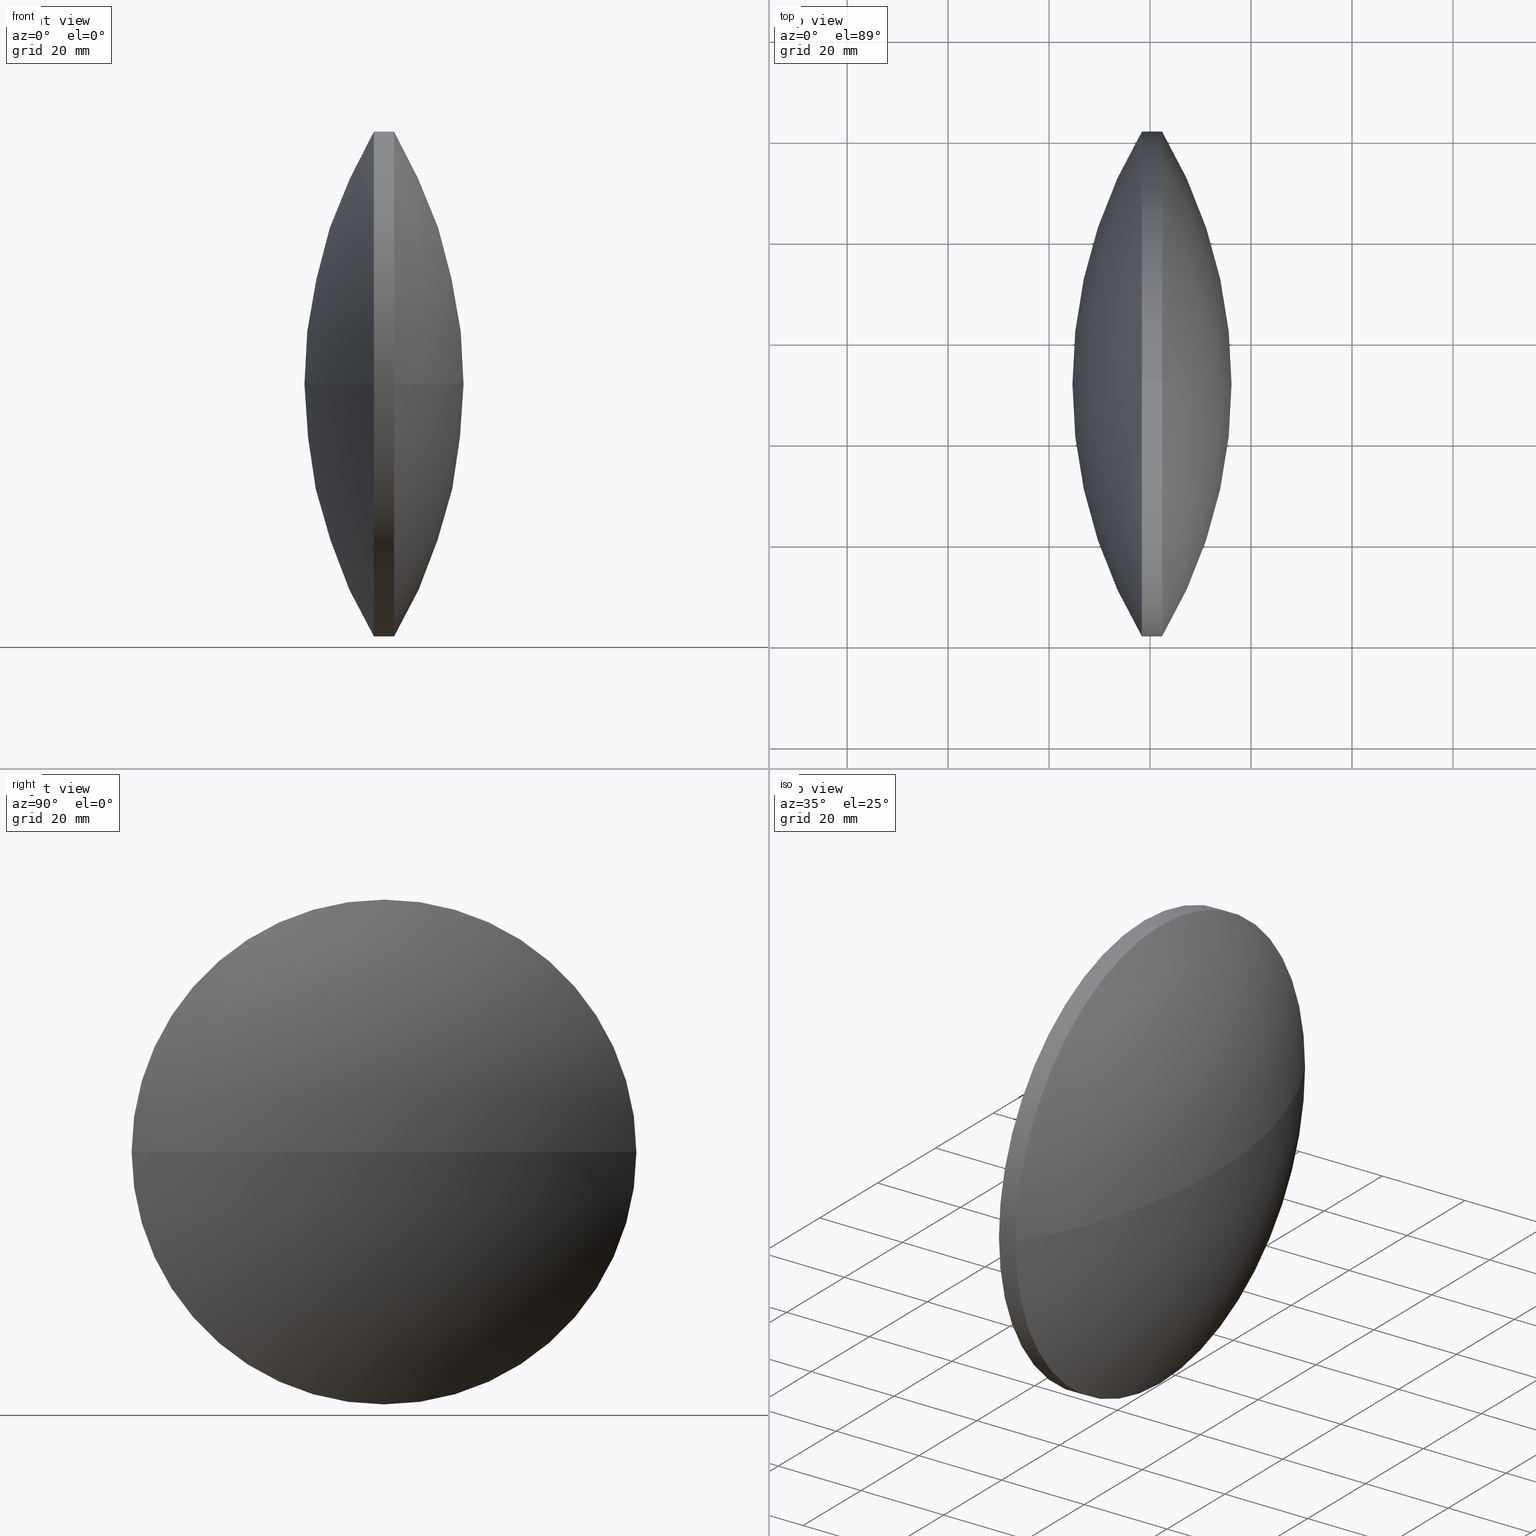
[diagram: canonical four-view strip — front | top / right | iso, engineering-drawing reading convention]
A machine part, canonical four-view strip (front | top / right | iso — engineering-drawing reading convention). The complete STEP part file that produces these views, byte-faithful:
ISO-10303-21;
HEADER;
FILE_DESCRIPTION (( 'STEP AP203' ),
    '1' );
FILE_NAME ('110021.STEP',
    '2019-06-25T06:28:54',
    ( '' ),
    ( '' ),
    'SwSTEP 2.0',
    'SolidWorks 2016',
    '' );
FILE_SCHEMA (( 'CONFIG_CONTROL_DESIGN' ));
ENDSEC;

DATA;
#1 = CARTESIAN_POINT ( 'NONE',  ( 342.3865896640226700, 191.4020197763163700, 0.0000000000000000000 ) ) ;
#2 = COORDINATED_UNIVERSAL_TIME_OFFSET ( 8, 0, .AHEAD. ) ;
#3 = EDGE_CURVE ( 'NONE', #229, #267, #107, .T. ) ;
#4 = ADVANCED_FACE ( 'NONE', ( #195 ), #15, .T. ) ;
#5 = DIRECTION ( 'NONE',  ( 0.0000000000000000000, 0.0000000000000000000, 1.000000000000000000 ) ) ;
#6 = CARTESIAN_POINT ( 'NONE',  ( 258.4235664082096900, 191.4020197763163400, 0.0000000000000000000 ) ) ;
#7 = APPLICATION_PROTOCOL_DEFINITION ( 'international standard', 'config_control_design', 1994, #142 ) ;
#8 = EDGE_CURVE ( 'NONE', #128, #105, #80, .T. ) ;
#9 = COORDINATED_UNIVERSAL_TIME_OFFSET ( 8, 0, .AHEAD. ) ;
#10 = APPROVAL_STATUS ( 'not_yet_approved' ) ;
#11 = PRODUCT_DEFINITION_FORMATION_WITH_SPECIFIED_SOURCE ( '�κ�', '', #178, .NOT_KNOWN. ) ;
#12 = COORDINATED_UNIVERSAL_TIME_OFFSET ( 8, 0, .AHEAD. ) ;
#13 = FACE_OUTER_BOUND ( 'NONE', #16, .T. ) ;
#14 = DESIGN_CONTEXT ( 'detailed design', #142, 'design' ) ;
#15 = SPHERICAL_SURFACE ( 'NONE', #243, 97.72302325581290500 ) ;
#16 = EDGE_LOOP ( 'NONE', ( #82, #70, #63, #340, #168, #270 ) ) ;
#17 = EDGE_CURVE ( 'NONE', #214, #304, #185, .T. ) ;
#18 = COORDINATED_UNIVERSAL_TIME_OFFSET ( 8, 0, .AHEAD. ) ;
#19 = VERTEX_POINT ( 'NONE', #103 ) ;
#20 = APPROVAL_STATUS ( 'not_yet_approved' ) ;
#21 = DIRECTION ( 'NONE',  ( 0.0000000000000000000, 1.000000000000000000, 0.0000000000000000000 ) ) ;
#22 = ORIENTED_EDGE ( 'NONE', *, *, #3, .T. ) ;
#23 = CALENDAR_DATE ( 2019, 25, 6 ) ;
#24 = DATE_AND_TIME ( #23, #222 ) ;
#25 = AXIS2_PLACEMENT_3D ( 'NONE', #41, #285, #342 ) ;
#26 = PRODUCT_RELATED_PRODUCT_CATEGORY ( 'detail', '', ( #287 ) ) ;
#27 = PERSON_AND_ORGANIZATION ( #238, #131 ) ;
#28 = UNCERTAINTY_MEASURE_WITH_UNIT (LENGTH_MEASURE( 1.000000000000000100E-005 ), #116, 'distance_accuracy_value', 'NONE');
#29 = CARTESIAN_POINT ( 'NONE',  ( 338.3865896640227200, 191.4020197763163700, 0.0000000000000000000 ) ) ;
#30 = AXIS2_PLACEMENT_3D ( 'NONE', #134, #272, #319 ) ;
#31 = DIRECTION ( 'NONE',  ( -1.000000000000000000, -0.0000000000000000000, -0.0000000000000000000 ) ) ;
#32 = CARTESIAN_POINT ( 'NONE',  ( 315.8819104246255200, 191.4020197763163700, 49.99999999999951700 ) ) ;
#33 = PERSON_AND_ORGANIZATION ( #238, #131 ) ;
#34 = PERSON_AND_ORGANIZATION_ROLE ( 'design_supplier' ) ;
#35 = DIRECTION ( 'NONE',  ( 0.0000000000000000000, 0.0000000000000000000, 1.000000000000000000 ) ) ;
#36 = CALENDAR_DATE ( 2019, 25, 6 ) ;
#37 = ORIENTED_EDGE ( 'NONE', *, *, #78, .T. ) ;
#38 = APPROVAL_DATE_TIME ( #101, #255 ) ;
#39 = CALENDAR_DATE ( 2019, 25, 6 ) ;
#40 = PERSON_AND_ORGANIZATION ( #238, #131 ) ;
#41 = CARTESIAN_POINT ( 'NONE',  ( 342.3865896640226700, 191.4020197763163700, 0.0000000000000000000 ) ) ;
#42 = APPROVAL ( #10, 'δָ��' ) ;
#43 = APPLICATION_CONTEXT ( 'configuration controlled 3d designs of mechanical parts and assemblies' ) ;
#44 = APPROVAL_DATE_TIME ( #104, #316 ) ;
#45 = DIRECTION ( 'NONE',  ( 0.0000000000000000000, 1.000000000000000000, 0.0000000000000000000 ) ) ;
#46 = EDGE_LOOP ( 'NONE', ( #259, #317, #330, #211 ) ) ;
#47 = APPROVAL_ROLE ( '' ) ;
#48 = APPROVAL_PERSON_ORGANIZATION ( #171, #215, #47 ) ;
#49 = AXIS2_PLACEMENT_3D ( 'NONE', #276, #278, #303 ) ;
#50 = CARTESIAN_POINT ( 'NONE',  ( 258.4235664082096900, 191.4020197763163400, 0.0000000000000000000 ) ) ;
#51 = PERSON_AND_ORGANIZATION ( #238, #131 ) ;
#52 = DATE_AND_TIME ( #257, #110 ) ;
#53 = ORIENTED_EDGE ( 'NONE', *, *, #137, .F. ) ;
#54 = DATE_AND_TIME ( #281, #212 ) ;
#55 = CIRCLE ( 'NONE', #145, 49.99999999999951700 ) ;
#56 = CC_DESIGN_DATE_AND_TIME_ASSIGNMENT ( #224, #325, ( #239 ) ) ;
#57 = EDGE_CURVE ( 'NONE', #229, #19, #55, .T. ) ;
#58 = CIRCLE ( 'NONE', #49, 49.99999999999951700 ) ;
#59 = DIRECTION ( 'NONE',  ( 1.000000000000000000, 0.0000000000000000000, 0.0000000000000000000 ) ) ;
#60 = CARTESIAN_POINT ( 'NONE',  ( 258.4235664082096900, 191.4020197763163400, 0.0000000000000000000 ) ) ;
#61 = SECURITY_CLASSIFICATION_LEVEL ( 'unclassified' ) ;
#62 = CALENDAR_DATE ( 2019, 25, 6 ) ;
#63 = ORIENTED_EDGE ( 'NONE', *, *, #248, .T. ) ;
#64 = CARTESIAN_POINT ( 'NONE',  ( 342.3865896640226700, 191.4020197763163700, -49.99999999999951700 ) ) ;
#65 = CC_DESIGN_APPROVAL ( #316, ( #124 ) ) ;
#66 = CYLINDRICAL_SURFACE ( 'NONE', #230, 49.99999999999951700 ) ;
#67 = FACE_OUTER_BOUND ( 'NONE', #83, .T. ) ;
#68 = AXIS2_PLACEMENT_3D ( 'NONE', #135, #84, #320 ) ;
#69 = DATE_AND_TIME ( #62, #328 ) ;
#70 = ORIENTED_EDGE ( 'NONE', *, *, #177, .T. ) ;
#71 = APPLICATION_CONTEXT ( 'configuration controlled 3d designs of mechanical parts and assemblies' ) ;
#72 = FACE_OUTER_BOUND ( 'NONE', #282, .T. ) ;
#73 = DIRECTION ( 'NONE',  ( -1.000000000000000000, -0.0000000000000000000, -0.0000000000000000000 ) ) ;
#74 = PERSON_AND_ORGANIZATION_ROLE ( 'creator' ) ;
#75 = DIRECTION ( 'NONE',  ( -0.0000000000000000000, 0.0000000000000000000, -1.000000000000000000 ) ) ;
#76 = CC_DESIGN_PERSON_AND_ORGANIZATION_ASSIGNMENT ( #240, #140, ( #239 ) ) ;
#77 = CIRCLE ( 'NONE', #200, 49.99999999999951700 ) ;
#78 = EDGE_CURVE ( 'NONE', #19, #244, #333, .T. ) ;
#79 = DATE_AND_TIME ( #146, #233 ) ;
#80 = CIRCLE ( 'NONE', #127, 49.99999999999951700 ) ;
#81 = DIRECTION ( 'NONE',  ( -1.000000000000000000, -0.0000000000000000000, -0.0000000000000000000 ) ) ;
#82 = ORIENTED_EDGE ( 'NONE', *, *, #17, .F. ) ;
#83 = EDGE_LOOP ( 'NONE', ( #226, #253, #141, #150 ) ) ;
#84 = DIRECTION ( 'NONE',  ( -1.000000000000000000, -0.0000000000000000000, -0.0000000000000000000 ) ) ;
#85 = ORIENTED_EDGE ( 'NONE', *, *, #205, .T. ) ;
#86 = CC_DESIGN_APPROVAL ( #289, ( #239 ) ) ;
#87 = DIRECTION ( 'NONE',  ( -1.000000000000000000, -0.0000000000000000000, -0.0000000000000000000 ) ) ;
#88 = APPLICATION_CONTEXT ( 'configuration controlled 3d designs of mechanical parts and assemblies' ) ;
#89 = ORIENTED_EDGE ( 'NONE', *, *, #95, .F. ) ;
#90 = VECTOR ( 'NONE', #31, 1000.000000000000000 ) ;
#91 = CARTESIAN_POINT ( 'NONE',  ( 342.3865896640226700, 191.4020197763163700, 0.0000000000000000000 ) ) ;
#92 = SHAPE_DEFINITION_REPRESENTATION ( #273, #102 ) ;
#93 = CLOSED_SHELL ( 'NONE', ( #246, #4, #268, #153, #241, #132 ) ) ;
#94 = ORIENTED_EDGE ( 'NONE', *, *, #95, .T. ) ;
#95 = EDGE_CURVE ( 'NONE', #244, #267, #311, .T. ) ;
#96 = AXIS2_PLACEMENT_3D ( 'NONE', #91, #327, #123 ) ;
#97 = APPROVAL_STATUS ( 'not_yet_approved' ) ;
#98 = CARTESIAN_POINT ( 'NONE',  ( 422.3496129198360900, 191.4020197763161900, 0.0000000000000000000 ) ) ;
#99 = PERSON_AND_ORGANIZATION ( #238, #131 ) ;
#100 = MECHANICAL_CONTEXT ( 'NONE', #43, 'mechanical' ) ;
#101 = DATE_AND_TIME ( #106, #170 ) ;
#102 = ADVANCED_BREP_SHAPE_REPRESENTATION ( '110021', ( #125, #298 ), #216 ) ;
#103 = CARTESIAN_POINT ( 'NONE',  ( 338.3865896640227200, 191.4020197763163700, 49.99999999999951700 ) ) ;
#104 = DATE_AND_TIME ( #36, #154 ) ;
#105 = VERTEX_POINT ( 'NONE', #109 ) ;
#106 = CALENDAR_DATE ( 2019, 25, 6 ) ;
#107 = CIRCLE ( 'NONE', #280, 97.72302325581320300 ) ;
#108 = EDGE_CURVE ( 'NONE', #169, #105, #296, .T. ) ;
#109 = CARTESIAN_POINT ( 'NONE',  ( 342.3865896640226700, 241.4020197763158800, 0.0000000000000000000 ) ) ;
#110 = LOCAL_TIME ( 14, 28, 54.00000000000000000, #18 ) ;
#111 = CARTESIAN_POINT ( 'NONE',  ( 315.8819104246255200, 191.4020197763163700, 0.0000000000000000000 ) ) ;
#112 = PERSON_AND_ORGANIZATION_ROLE ( 'design_owner' ) ;
#113 = DIRECTION ( 'NONE',  ( 0.0000000000000000000, 0.0000000000000000000, 1.000000000000000000 ) ) ;
#114 = APPROVAL_PERSON_ORGANIZATION ( #308, #289, #115 ) ;
#115 = APPROVAL_ROLE ( '' ) ;
#116 =( LENGTH_UNIT ( ) NAMED_UNIT ( * ) SI_UNIT ( .MILLI., .METRE. ) );
#117 = CARTESIAN_POINT ( 'NONE',  ( 338.3865896640227200, 141.4020197763167300, -6.123233995736697500E-015 ) ) ;
#118 = DESIGN_CONTEXT ( 'detailed design', #71, 'design' ) ;
#119 = DIRECTION ( 'NONE',  ( -1.000000000000000000, -0.0000000000000000000, -0.0000000000000000000 ) ) ;
#120 = APPROVAL_PERSON_ORGANIZATION ( #51, #42, #223 ) ;
#121 = ORIENTED_EDGE ( 'NONE', *, *, #137, .T. ) ;
#122 = DATE_TIME_ROLE ( 'creation_date' ) ;
#123 = DIRECTION ( 'NONE',  ( 0.0000000000000000000, 0.0000000000000000000, 1.000000000000000000 ) ) ;
#124 = SECURITY_CLASSIFICATION ( '', '', #236 ) ;
#125 = MANIFOLD_SOLID_BREP ( '��ת1', #93 ) ;
#126 = SPHERICAL_SURFACE ( 'NONE', #305, 97.72302325581320300 ) ;
#127 = AXIS2_PLACEMENT_3D ( 'NONE', #1, #213, #156 ) ;
#128 = VERTEX_POINT ( 'NONE', #189 ) ;
#129 = CARTESIAN_POINT ( 'NONE',  ( 315.8819104246255200, 191.4020197763163700, -49.99999999999951700 ) ) ;
#130 = CC_DESIGN_APPROVAL ( #231, ( #279 ) ) ;
#131 = ORGANIZATION ( 'δָ��', 'δָ��', '' ) ;
#132 = ADVANCED_FACE ( 'NONE', ( #13 ), #263, .T. ) ;
#133 = VERTEX_POINT ( 'NONE', #294 ) ;
#134 = CARTESIAN_POINT ( 'NONE',  ( 422.3496129198360900, 191.4020197763161900, 0.0000000000000000000 ) ) ;
#135 = CARTESIAN_POINT ( 'NONE',  ( 338.3865896640227200, 191.4020197763163700, 0.0000000000000000000 ) ) ;
#136 = FACE_OUTER_BOUND ( 'NONE', #339, .T. ) ;
#137 = EDGE_CURVE ( 'NONE', #244, #304, #162, .T. ) ;
#138 = DIRECTION ( 'NONE',  ( 0.0000000000000000000, 1.000000000000000000, 1.224646799147353500E-016 ) ) ;
#139 = CARTESIAN_POINT ( 'NONE',  ( 338.3865896640227200, 191.4020197763163700, 0.0000000000000000000 ) ) ;
#140 = PERSON_AND_ORGANIZATION_ROLE ( 'creator' ) ;
#141 = ORIENTED_EDGE ( 'NONE', *, *, #8, .F. ) ;
#142 = APPLICATION_CONTEXT ( 'configuration controlled 3d designs of mechanical parts and assemblies' ) ;
#143 = DATE_AND_TIME ( #180, #283 ) ;
#144 = VECTOR ( 'NONE', #81, 1000.000000000000000 ) ;
#145 = AXIS2_PLACEMENT_3D ( 'NONE', #29, #73, #184 ) ;
#146 = CALENDAR_DATE ( 2019, 25, 6 ) ;
#147 = APPROVAL_ROLE ( '' ) ;
#148 = CARTESIAN_POINT ( 'NONE',  ( 324.6265896640229000, 191.4020197763161900, 0.0000000000000000000 ) ) ;
#149 = ORIENTED_EDGE ( 'NONE', *, *, #335, .F. ) ;
#150 = ORIENTED_EDGE ( 'NONE', *, *, #248, .F. ) ;
#151 = ORIENTED_EDGE ( 'NONE', *, *, #8, .T. ) ;
#152 = AXIS2_PLACEMENT_3D ( 'NONE', #6, #324, #297 ) ;
#153 = ADVANCED_FACE ( 'NONE', ( #72 ), #126, .T. ) ;
#154 = LOCAL_TIME ( 14, 28, 54.00000000000000000, #314 ) ;
#155 = ORIENTED_EDGE ( 'NONE', *, *, #57, .T. ) ;
#156 = DIRECTION ( 'NONE',  ( 0.0000000000000000000, 0.0000000000000000000, 1.000000000000000000 ) ) ;
#157 = CC_DESIGN_PERSON_AND_ORGANIZATION_ASSIGNMENT ( #207, #34, ( #165 ) ) ;
#158 = PRODUCT_DEFINITION_SHAPE ( 'NONE', 'NONE',  #239 ) ;
#159 = DIRECTION ( 'NONE',  ( -0.0000000000000000000, 0.0000000000000000000, -1.000000000000000000 ) ) ;
#160 = CC_DESIGN_DATE_AND_TIME_ASSIGNMENT ( #69, #286, ( #124 ) ) ;
#161 = DIRECTION ( 'NONE',  ( 0.0000000000000000000, 0.0000000000000000000, 1.000000000000000000 ) ) ;
#162 = CIRCLE ( 'NONE', #227, 49.99999999999951700 ) ;
#163 = AXIS2_PLACEMENT_3D ( 'NONE', #60, #295, #138 ) ;
#164 = DIRECTION ( 'NONE',  ( -0.0000000000000000000, 0.0000000000000000000, -1.000000000000000000 ) ) ;
#165 = PRODUCT_DEFINITION_FORMATION_WITH_SPECIFIED_SOURCE ( '�κ�', '', #287, .NOT_KNOWN. ) ;
#166 = PERSON_AND_ORGANIZATION ( #238, #131 ) ;
#167 = CC_DESIGN_PERSON_AND_ORGANIZATION_ASSIGNMENT ( #33, #112, ( #287 ) ) ;
#168 = ORIENTED_EDGE ( 'NONE', *, *, #57, .F. ) ;
#169 = VERTEX_POINT ( 'NONE', #309 ) ;
#170 = LOCAL_TIME ( 14, 28, 54.00000000000000000, #245 ) ;
#171 = PERSON_AND_ORGANIZATION ( #238, #131 ) ;
#172 = AXIS2_PLACEMENT_3D ( 'NONE', #111, #87, #113 ) ;
#173 = CC_DESIGN_APPROVAL ( #215, ( #11 ) ) ;
#174 = PERSON_AND_ORGANIZATION_ROLE ( 'design_owner' ) ;
#175 = DIRECTION ( 'NONE',  ( -1.000000000000000000, -0.0000000000000000000, -0.0000000000000000000 ) ) ;
#176 = COORDINATED_UNIVERSAL_TIME_OFFSET ( 8, 0, .AHEAD. ) ;
#177 = EDGE_CURVE ( 'NONE', #214, #133, #256, .T. ) ;
#178 = PRODUCT ( '110021', '110021', '', ( #100 ) ) ;
#179 = CARTESIAN_POINT ( 'NONE',  ( 422.3496129198360900, 191.4020197763161900, 0.0000000000000000000 ) ) ;
#180 = CALENDAR_DATE ( 2019, 25, 6 ) ;
#181 = AXIS2_PLACEMENT_3D ( 'NONE', #249, #274, #219 ) ;
#182 = APPROVAL_DATE_TIME ( #24, #231 ) ;
#183 = ORIENTED_EDGE ( 'NONE', *, *, #3, .F. ) ;
#184 = DIRECTION ( 'NONE',  ( 0.0000000000000000000, 0.0000000000000000000, 1.000000000000000000 ) ) ;
#185 = LINE ( 'NONE', #129, #144 ) ;
#186 = CC_DESIGN_PERSON_AND_ORGANIZATION_ASSIGNMENT ( #322, #247, ( #307 ) ) ;
#187 = DATE_AND_TIME ( #39, #209 ) ;
#188 = CARTESIAN_POINT ( 'NONE',  ( 0.0000000000000000000, 0.0000000000000000000, 0.0000000000000000000 ) ) ;
#189 = CARTESIAN_POINT ( 'NONE',  ( 342.3865896640226700, 191.4020197763163700, 49.99999999999951700 ) ) ;
#190 = APPROVAL_STATUS ( 'not_yet_approved' ) ;
#191 = CC_DESIGN_PERSON_AND_ORGANIZATION_ASSIGNMENT ( #306, #310, ( #11 ) ) ;
#192 = PERSON_AND_ORGANIZATION_ROLE ( 'creator' ) ;
#193 = CARTESIAN_POINT ( 'NONE',  ( 338.3865896640227200, 241.4020197763158300, 0.0000000000000000000 ) ) ;
#194 = SPHERICAL_SURFACE ( 'NONE', #197, 97.72302325581320300 ) ;
#195 = FACE_OUTER_BOUND ( 'NONE', #46, .T. ) ;
#196 = CC_DESIGN_DATE_AND_TIME_ASSIGNMENT ( #52, #122, ( #279 ) ) ;
#197 = AXIS2_PLACEMENT_3D ( 'NONE', #206, #159, #250 ) ;
#198 = CC_DESIGN_PERSON_AND_ORGANIZATION_ASSIGNMENT ( #99, #262, ( #124 ) ) ;
#199 = PERSON_AND_ORGANIZATION ( #238, #131 ) ;
#200 = AXIS2_PLACEMENT_3D ( 'NONE', #139, #119, #35 ) ;
#201 = APPROVAL_STATUS ( 'not_yet_approved' ) ;
#202 = FACE_OUTER_BOUND ( 'NONE', #242, .T. ) ;
#203 = CC_DESIGN_PERSON_AND_ORGANIZATION_ASSIGNMENT ( #166, #74, ( #279 ) ) ;
#204 = APPROVAL_ROLE ( '' ) ;
#205 = EDGE_CURVE ( 'NONE', #105, #214, #58, .T. ) ;
#206 = CARTESIAN_POINT ( 'NONE',  ( 422.3496129198360900, 191.4020197763161900, 0.0000000000000000000 ) ) ;
#207 = PERSON_AND_ORGANIZATION ( #238, #131 ) ;
#208 = CC_DESIGN_PERSON_AND_ORGANIZATION_ASSIGNMENT ( #199, #174, ( #178 ) ) ;
#209 = LOCAL_TIME ( 14, 28, 54.00000000000000000, #228 ) ;
#210 = CC_DESIGN_PERSON_AND_ORGANIZATION_ASSIGNMENT ( #237, #284, ( #11 ) ) ;
#211 = ORIENTED_EDGE ( 'NONE', *, *, #205, .F. ) ;
#212 = LOCAL_TIME ( 14, 28, 54.00000000000000000, #2 ) ;
#213 = DIRECTION ( 'NONE',  ( -1.000000000000000000, -0.0000000000000000000, -0.0000000000000000000 ) ) ;
#214 = VERTEX_POINT ( 'NONE', #64 ) ;
#215 = APPROVAL ( #97, 'δָ��' ) ;
#216 =( GEOMETRIC_REPRESENTATION_CONTEXT ( 3 ) GLOBAL_UNCERTAINTY_ASSIGNED_CONTEXT ( ( #28 ) ) GLOBAL_UNIT_ASSIGNED_CONTEXT ( ( #116, #326, #221 ) ) REPRESENTATION_CONTEXT ( 'NONE', 'WORKASPACE' ) );
#217 = DATE_TIME_ROLE ( 'classification_date' ) ;
#218 = PERSON_AND_ORGANIZATION ( #238, #131 ) ;
#219 = DIRECTION ( 'NONE',  ( 1.000000000000000000, 0.0000000000000000000, 0.0000000000000000000 ) ) ;
#220 = DIRECTION ( 'NONE',  ( -1.000000000000000000, -0.0000000000000000000, -0.0000000000000000000 ) ) ;
#221 =( NAMED_UNIT ( * ) SI_UNIT ( $, .STERADIAN. ) SOLID_ANGLE_UNIT ( ) );
#222 = LOCAL_TIME ( 14, 28, 54.00000000000000000, #176 ) ;
#223 = APPROVAL_ROLE ( '' ) ;
#224 = DATE_AND_TIME ( #300, #334 ) ;
#225 = DIRECTION ( 'NONE',  ( 0.0000000000000000000, 1.000000000000000000, 0.0000000000000000000 ) ) ;
#226 = ORIENTED_EDGE ( 'NONE', *, *, #271, .F. ) ;
#227 = AXIS2_PLACEMENT_3D ( 'NONE', #235, #175, #260 ) ;
#228 = COORDINATED_UNIVERSAL_TIME_OFFSET ( 8, 0, .AHEAD. ) ;
#229 = VERTEX_POINT ( 'NONE', #117 ) ;
#230 = AXIS2_PLACEMENT_3D ( 'NONE', #291, #220, #5 ) ;
#231 = APPROVAL ( #20, 'δָ��' ) ;
#232 = APPROVAL_ROLE ( '' ) ;
#233 = LOCAL_TIME ( 14, 28, 54.00000000000000000, #318 ) ;
#234 = APPLICATION_PROTOCOL_DEFINITION ( 'international standard', 'config_control_design', 1994, #43 ) ;
#235 = CARTESIAN_POINT ( 'NONE',  ( 338.3865896640227200, 191.4020197763163700, 0.0000000000000000000 ) ) ;
#236 = SECURITY_CLASSIFICATION_LEVEL ( 'unclassified' ) ;
#237 = PERSON_AND_ORGANIZATION ( #238, #131 ) ;
#238 = PERSON ( 'δָ��', 'δָ��', 'δָ��', ('δָ��'), ('δָ��'), ('δָ��') ) ;
#239 = PRODUCT_DEFINITION ( 'δ֪', '', #165, #14 ) ;
#240 = PERSON_AND_ORGANIZATION ( #238, #131 ) ;
#241 = ADVANCED_FACE ( 'NONE', ( #67 ), #341, .T. ) ;
#242 = EDGE_LOOP ( 'NONE', ( #85, #275, #53, #293, #149, #151 ) ) ;
#243 = AXIS2_PLACEMENT_3D ( 'NONE', #50, #344, #45 ) ;
#244 = VERTEX_POINT ( 'NONE', #193 ) ;
#245 = COORDINATED_UNIVERSAL_TIME_OFFSET ( 8, 0, .AHEAD. ) ;
#246 = ADVANCED_FACE ( 'NONE', ( #202 ), #66, .T. ) ;
#247 = PERSON_AND_ORGANIZATION_ROLE ( 'classification_officer' ) ;
#248 = EDGE_CURVE ( 'NONE', #133, #128, #269, .T. ) ;
#249 = CARTESIAN_POINT ( 'NONE',  ( 0.0000000000000000000, 0.0000000000000000000, 0.0000000000000000000 ) ) ;
#250 = DIRECTION ( 'NONE',  ( 0.0000000000000000000, 1.000000000000000000, 0.0000000000000000000 ) ) ;
#251 = APPROVAL_DATE_TIME ( #187, #215 ) ;
#252 = ORIENTED_EDGE ( 'NONE', *, *, #266, .T. ) ;
#253 = ORIENTED_EDGE ( 'NONE', *, *, #108, .T. ) ;
#254 = PERSON_AND_ORGANIZATION ( #238, #131 ) ;
#255 = APPROVAL ( #336, 'δָ��' ) ;
#256 = CIRCLE ( 'NONE', #25, 49.99999999999951700 ) ;
#257 = CALENDAR_DATE ( 2019, 25, 6 ) ;
#258 = APPLICATION_PROTOCOL_DEFINITION ( 'international standard', 'config_control_design', 1994, #71 ) ;
#259 = ORIENTED_EDGE ( 'NONE', *, *, #108, .F. ) ;
#260 = DIRECTION ( 'NONE',  ( 0.0000000000000000000, 0.0000000000000000000, 1.000000000000000000 ) ) ;
#261 = CC_DESIGN_APPROVAL ( #255, ( #307 ) ) ;
#262 = PERSON_AND_ORGANIZATION_ROLE ( 'classification_officer' ) ;
#263 = CYLINDRICAL_SURFACE ( 'NONE', #172, 49.99999999999951700 ) ;
#264 = DIRECTION ( 'NONE',  ( 0.0000000000000000000, 1.224646799147353200E-016, -1.000000000000000000 ) ) ;
#265 = APPROVAL_DATE_TIME ( #54, #289 ) ;
#266 = EDGE_CURVE ( 'NONE', #304, #229, #77, .T. ) ;
#267 = VERTEX_POINT ( 'NONE', #148 ) ;
#268 = ADVANCED_FACE ( 'NONE', ( #136 ), #194, .T. ) ;
#269 = CIRCLE ( 'NONE', #96, 49.99999999999951700 ) ;
#270 = ORIENTED_EDGE ( 'NONE', *, *, #266, .F. ) ;
#271 = EDGE_CURVE ( 'NONE', #169, #133, #315, .T. ) ;
#272 = DIRECTION ( 'NONE',  ( -0.0000000000000000000, 0.0000000000000000000, 1.000000000000000000 ) ) ;
#273 = PRODUCT_DEFINITION_SHAPE ( 'NONE', 'NONE',  #279 ) ;
#274 = DIRECTION ( 'NONE',  ( 0.0000000000000000000, 0.0000000000000000000, 1.000000000000000000 ) ) ;
#275 = ORIENTED_EDGE ( 'NONE', *, *, #17, .T. ) ;
#276 = CARTESIAN_POINT ( 'NONE',  ( 342.3865896640226700, 191.4020197763163700, 0.0000000000000000000 ) ) ;
#277 = APPROVAL_PERSON_ORGANIZATION ( #40, #255, #147 ) ;
#278 = DIRECTION ( 'NONE',  ( -1.000000000000000000, -0.0000000000000000000, -0.0000000000000000000 ) ) ;
#279 = PRODUCT_DEFINITION ( 'δ֪', '', #11, #118 ) ;
#280 = AXIS2_PLACEMENT_3D ( 'NONE', #179, #264, #290 ) ;
#281 = CALENDAR_DATE ( 2019, 25, 6 ) ;
#282 = EDGE_LOOP ( 'NONE', ( #183, #155, #37, #94 ) ) ;
#283 = LOCAL_TIME ( 14, 28, 54.00000000000000000, #12 ) ;
#284 = PERSON_AND_ORGANIZATION_ROLE ( 'design_supplier' ) ;
#285 = DIRECTION ( 'NONE',  ( -1.000000000000000000, -0.0000000000000000000, -0.0000000000000000000 ) ) ;
#286 = DATE_TIME_ROLE ( 'classification_date' ) ;
#287 = PRODUCT ( '110021', '110021', '', ( #299 ) ) ;
#288 = APPROVAL_DATE_TIME ( #79, #42 ) ;
#289 = APPROVAL ( #190, 'δָ��' ) ;
#290 = DIRECTION ( 'NONE',  ( 0.0000000000000000000, 1.000000000000000000, 1.224646799147353200E-016 ) ) ;
#291 = CARTESIAN_POINT ( 'NONE',  ( 315.8819104246255200, 191.4020197763163700, 0.0000000000000000000 ) ) ;
#292 = AXIS2_PLACEMENT_3D ( 'NONE', #329, #164, #225 ) ;
#293 = ORIENTED_EDGE ( 'NONE', *, *, #78, .F. ) ;
#294 = CARTESIAN_POINT ( 'NONE',  ( 342.3865896640226700, 141.4020197763168200, -6.123233995736706100E-015 ) ) ;
#295 = DIRECTION ( 'NONE',  ( 0.0000000000000000000, 1.224646799147353200E-016, -1.000000000000000000 ) ) ;
#296 = CIRCLE ( 'NONE', #152, 97.72302325581289000 ) ;
#297 = DIRECTION ( 'NONE',  ( 1.000000000000000000, 0.0000000000000000000, 0.0000000000000000000 ) ) ;
#298 = AXIS2_PLACEMENT_3D ( 'NONE', #188, #161, #59 ) ;
#299 = MECHANICAL_CONTEXT ( 'NONE', #88, 'mechanical' ) ;
#300 = CALENDAR_DATE ( 2019, 25, 6 ) ;
#301 = CC_DESIGN_PERSON_AND_ORGANIZATION_ASSIGNMENT ( #218, #192, ( #165 ) ) ;
#302 = CARTESIAN_POINT ( 'NONE',  ( 338.3865896640227200, 191.4020197763163700, -49.99999999999951700 ) ) ;
#303 = DIRECTION ( 'NONE',  ( 0.0000000000000000000, 0.0000000000000000000, 1.000000000000000000 ) ) ;
#304 = VERTEX_POINT ( 'NONE', #302 ) ;
#305 = AXIS2_PLACEMENT_3D ( 'NONE', #98, #75, #21 ) ;
#306 = PERSON_AND_ORGANIZATION ( #238, #131 ) ;
#307 = SECURITY_CLASSIFICATION ( '', '', #61 ) ;
#308 = PERSON_AND_ORGANIZATION ( #238, #131 ) ;
#309 = CARTESIAN_POINT ( 'NONE',  ( 356.1465896640226000, 191.4020197763163400, 0.0000000000000000000 ) ) ;
#310 = PERSON_AND_ORGANIZATION_ROLE ( 'creator' ) ;
#311 = CIRCLE ( 'NONE', #30, 97.72302325581317500 ) ;
#312 = CC_DESIGN_SECURITY_CLASSIFICATION ( #307, ( #165 ) ) ;
#313 = APPROVAL_PERSON_ORGANIZATION ( #254, #231, #204 ) ;
#314 = COORDINATED_UNIVERSAL_TIME_OFFSET ( 8, 0, .AHEAD. ) ;
#315 = CIRCLE ( 'NONE', #163, 97.72302325581289000 ) ;
#316 = APPROVAL ( #201, 'δָ��' ) ;
#317 = ORIENTED_EDGE ( 'NONE', *, *, #271, .T. ) ;
#318 = COORDINATED_UNIVERSAL_TIME_OFFSET ( 8, 0, .AHEAD. ) ;
#319 = DIRECTION ( 'NONE',  ( 1.000000000000000000, 0.0000000000000000000, 0.0000000000000000000 ) ) ;
#320 = DIRECTION ( 'NONE',  ( 0.0000000000000000000, 0.0000000000000000000, 1.000000000000000000 ) ) ;
#321 = CC_DESIGN_DATE_AND_TIME_ASSIGNMENT ( #143, #217, ( #307 ) ) ;
#322 = PERSON_AND_ORGANIZATION ( #238, #131 ) ;
#323 = APPLICATION_PROTOCOL_DEFINITION ( 'international standard', 'config_control_design', 1994, #88 ) ;
#324 = DIRECTION ( 'NONE',  ( -0.0000000000000000000, 0.0000000000000000000, 1.000000000000000000 ) ) ;
#325 = DATE_TIME_ROLE ( 'creation_date' ) ;
#326 =( NAMED_UNIT ( * ) PLANE_ANGLE_UNIT ( ) SI_UNIT ( $, .RADIAN. ) );
#327 = DIRECTION ( 'NONE',  ( -1.000000000000000000, -0.0000000000000000000, -0.0000000000000000000 ) ) ;
#328 = LOCAL_TIME ( 14, 28, 54.00000000000000000, #9 ) ;
#329 = CARTESIAN_POINT ( 'NONE',  ( 258.4235664082096900, 191.4020197763163400, 0.0000000000000000000 ) ) ;
#330 = ORIENTED_EDGE ( 'NONE', *, *, #177, .F. ) ;
#331 = COORDINATED_UNIVERSAL_TIME_OFFSET ( 8, 0, .AHEAD. ) ;
#332 = PRODUCT_RELATED_PRODUCT_CATEGORY ( 'detail', '', ( #178 ) ) ;
#333 = CIRCLE ( 'NONE', #68, 49.99999999999951700 ) ;
#334 = LOCAL_TIME ( 14, 28, 54.00000000000000000, #331 ) ;
#335 = EDGE_CURVE ( 'NONE', #128, #19, #343, .T. ) ;
#336 = APPROVAL_STATUS ( 'not_yet_approved' ) ;
#337 = APPROVAL_PERSON_ORGANIZATION ( #27, #316, #232 ) ;
#338 = CC_DESIGN_SECURITY_CLASSIFICATION ( #124, ( #11 ) ) ;
#339 = EDGE_LOOP ( 'NONE', ( #121, #252, #22, #89 ) ) ;
#340 = ORIENTED_EDGE ( 'NONE', *, *, #335, .T. ) ;
#341 = SPHERICAL_SURFACE ( 'NONE', #292, 97.72302325581290500 ) ;
#342 = DIRECTION ( 'NONE',  ( 0.0000000000000000000, 0.0000000000000000000, 1.000000000000000000 ) ) ;
#343 = LINE ( 'NONE', #32, #90 ) ;
#344 = DIRECTION ( 'NONE',  ( -0.0000000000000000000, 0.0000000000000000000, -1.000000000000000000 ) ) ;
#345 = CC_DESIGN_APPROVAL ( #42, ( #165 ) ) ;
ENDSEC;
END-ISO-10303-21;
